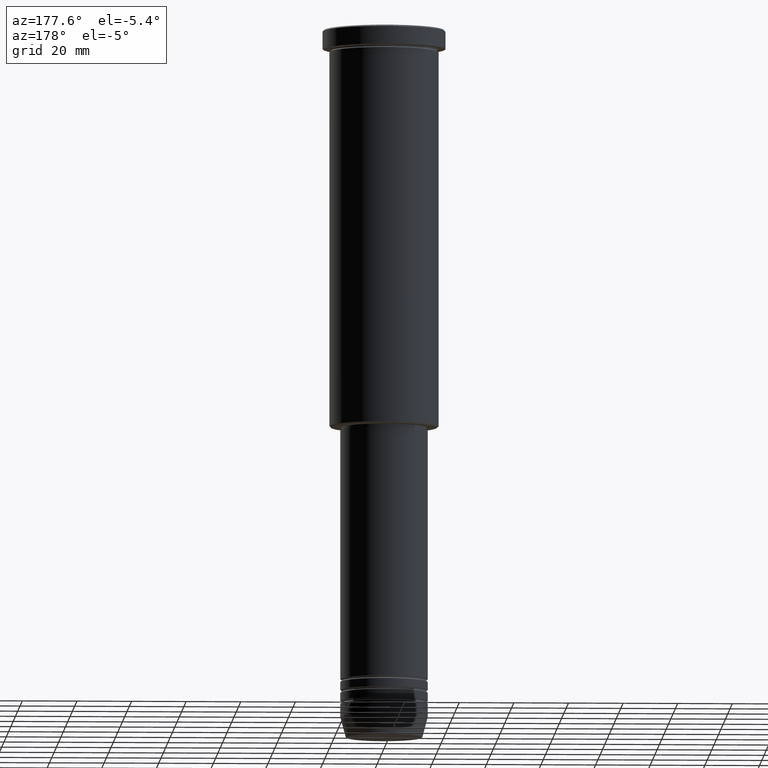
[diagram: clean part render]
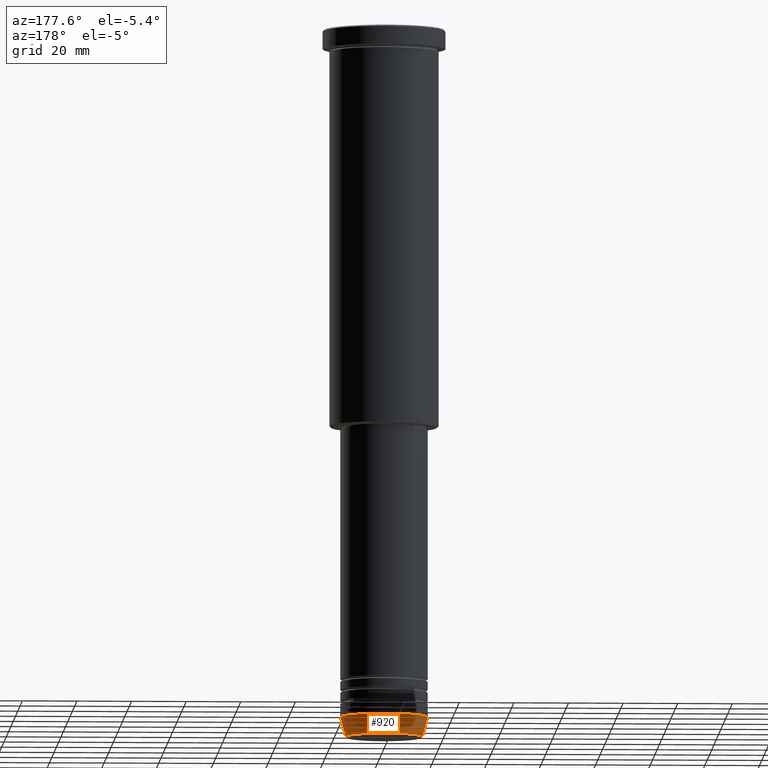
[diagram: same view with one face highlighted and labeled with its STEP entity id]
A machine part, auxiliary view. The second image highlights one B-rep face of the part: STEP entity #920.
In plain terms, the highlighted conical surface has half-angle 15 deg.
Its self-contained STEP definition (entity closure, byte-faithful):
#43 = EDGE_CURVE ( 'NONE', #819, #469, #443, .T. ) ;
#65 = EDGE_CURVE ( 'NONE', #128, #819, #849, .T. ) ;
#85 = CARTESIAN_POINT ( 'NONE',  ( 0.000000000000000000, 0.000000000000000000, -252.5000000000000000 ) ) ;
#105 = CARTESIAN_POINT ( 'NONE',  ( -16.00000000000000000, 1.959434878635765131E-15, -252.5000000000000000 ) ) ;
#116 = CARTESIAN_POINT ( 'NONE',  ( 14.08968047592161632, 0.000000000000000000, -259.6294095225512706 ) ) ;
#128 = VERTEX_POINT ( 'NONE', #116 ) ;
#150 = VECTOR ( 'NONE', #366, 1000.000000000000000 ) ;
#229 = DIRECTION ( 'NONE',  ( 1.000000000000000000, 0.000000000000000000, 0.000000000000000000 ) ) ;
#243 = CARTESIAN_POINT ( 'NONE',  ( -14.08968047592161632, 1.842461544110200874E-15, -259.6294095225512706 ) ) ;
#278 = LINE ( 'NONE', #291, #402 ) ;
#291 = CARTESIAN_POINT ( 'NONE',  ( 16.00000000000000000, 0.000000000000000000, -252.5000000000000000 ) ) ;
#298 = ORIENTED_EDGE ( 'NONE', *, *, #43, .T. ) ;
#339 = AXIS2_PLACEMENT_3D ( 'NONE', #1083, #629, #1089 ) ;
#355 = FACE_OUTER_BOUND ( 'NONE', #500, .T. ) ;
#362 = DIRECTION ( 'NONE',  ( 0.2588190451025213501, 0.000000000000000000, 0.9659258262890680902 ) ) ;
#366 = DIRECTION ( 'NONE',  ( -0.2588190451025213501, 3.169619151431772337E-17, 0.9659258262890680902 ) ) ;
#399 = AXIS2_PLACEMENT_3D ( 'NONE', #860, #577, #229 ) ;
#402 = VECTOR ( 'NONE', #362, 1000.000000000000000 ) ;
#418 = CONICAL_SURFACE ( 'NONE', #759, 16.00000000000000000, 0.2617993877991500740 ) ;
#443 = LINE ( 'NONE', #105, #150 ) ;
#461 = CARTESIAN_POINT ( 'NONE',  ( -16.00000000000000000, 1.959434878635765131E-15, -252.5000000000000000 ) ) ;
#469 = VERTEX_POINT ( 'NONE', #461 ) ;
#500 = EDGE_LOOP ( 'NONE', ( #997, #298, #1154, #770 ) ) ;
#577 = DIRECTION ( 'NONE',  ( -0.000000000000000000, -0.000000000000000000, 1.000000000000000000 ) ) ;
#592 = EDGE_CURVE ( 'NONE', #1086, #469, #983, .T. ) ;
#617 = DIRECTION ( 'NONE',  ( 1.000000000000000000, 0.000000000000000000, 0.000000000000000000 ) ) ;
#629 = DIRECTION ( 'NONE',  ( -0.000000000000000000, -0.000000000000000000, 1.000000000000000000 ) ) ;
#759 = AXIS2_PLACEMENT_3D ( 'NONE', #85, #1000, #617 ) ;
#761 = CARTESIAN_POINT ( 'NONE',  ( 16.00000000000000000, 0.000000000000000000, -252.5000000000000000 ) ) ;
#770 = ORIENTED_EDGE ( 'NONE', *, *, #1109, .F. ) ;
#819 = VERTEX_POINT ( 'NONE', #243 ) ;
#849 = CIRCLE ( 'NONE', #339, 14.08968047592161632 ) ;
#860 = CARTESIAN_POINT ( 'NONE',  ( 0.000000000000000000, 0.000000000000000000, -252.5000000000000000 ) ) ;
#920 = ADVANCED_FACE ( 'NONE', ( #355 ), #418, .T. ) ;
#983 = CIRCLE ( 'NONE', #399, 16.00000000000000000 ) ;
#997 = ORIENTED_EDGE ( 'NONE', *, *, #65, .T. ) ;
#1000 = DIRECTION ( 'NONE',  ( -0.000000000000000000, -0.000000000000000000, 1.000000000000000000 ) ) ;
#1083 = CARTESIAN_POINT ( 'NONE',  ( 0.000000000000000000, 0.000000000000000000, -259.6294095225512706 ) ) ;
#1086 = VERTEX_POINT ( 'NONE', #761 ) ;
#1089 = DIRECTION ( 'NONE',  ( 1.000000000000000000, 0.000000000000000000, 0.000000000000000000 ) ) ;
#1109 = EDGE_CURVE ( 'NONE', #128, #1086, #278, .T. ) ;
#1154 = ORIENTED_EDGE ( 'NONE', *, *, #592, .F. ) ;